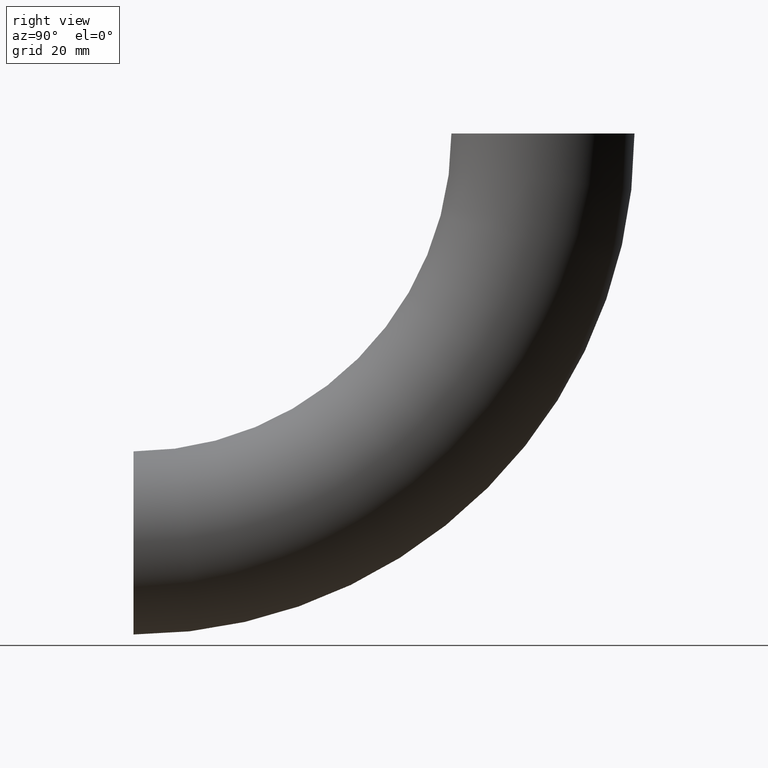
[diagram: clean part render]
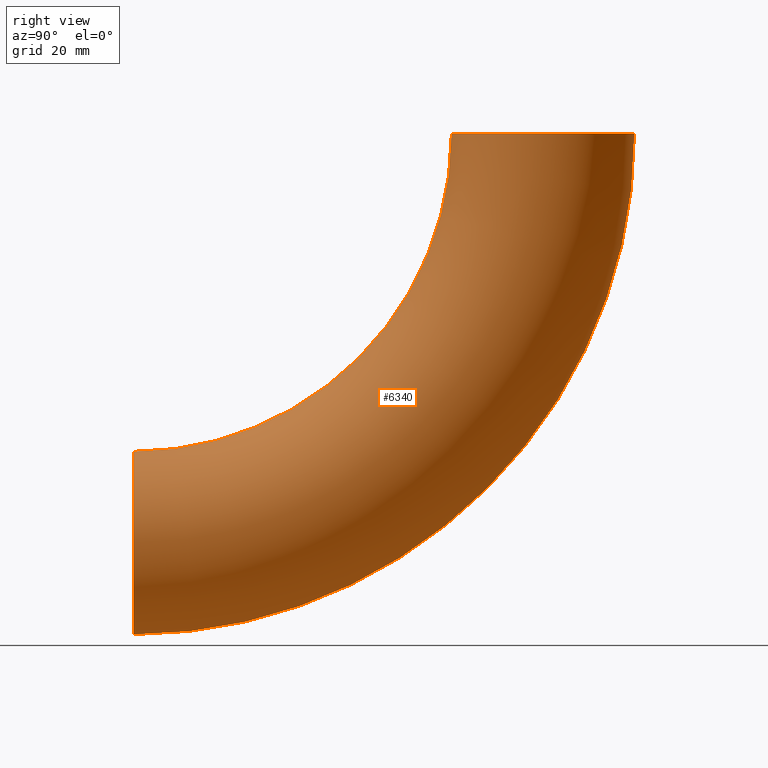
[diagram: same view with one face highlighted and labeled with its STEP entity id]
A machine part, right view. The second image highlights one B-rep face of the part: STEP entity #6340.
In plain terms, the highlighted toroidal blend (fillet) surface has major radius 108 mm and minor (blend) radius 24.15 mm.
Its self-contained STEP definition (entity closure, byte-faithful):
#87 = EDGE_CURVE ( 'NONE', #7741, #11550, #11129, .T. ) ;
#662 = AXIS2_PLACEMENT_3D ( 'NONE', #3085, #8453, #5803 ) ;
#792 = DIRECTION ( 'NONE',  ( -1.000000000000000000, -0.0000000000000000000, -0.0000000000000000000 ) ) ;
#1064 = CARTESIAN_POINT ( 'NONE',  ( 0.0000000000000000000, 0.0000000000000000000, 0.0000000000000000000 ) ) ;
#1629 = AXIS2_PLACEMENT_3D ( 'NONE', #7996, #4229, #7831 ) ;
#2225 = CARTESIAN_POINT ( 'NONE',  ( 0.0000000000000000000, 132.1499999999999800, -8.091853725366135600E-015 ) ) ;
#2626 = TOROIDAL_SURFACE ( 'NONE', #6694, 108.0000000000000000, 24.14999999999999900 ) ;
#2855 = CARTESIAN_POINT ( 'NONE',  ( 0.0000000000000000000, 0.0000000000000000000, -132.1499999999999800 ) ) ;
#3085 = CARTESIAN_POINT ( 'NONE',  ( 0.0000000000000000000, 108.0000000000000000, -6.613092715395707500E-015 ) ) ;
#3470 = CIRCLE ( 'NONE', #662, 24.14999999999999100 ) ;
#4229 = DIRECTION ( 'NONE',  ( 0.0000000000000000000, 1.000000000000000000, 0.0000000000000000000 ) ) ;
#4531 = ORIENTED_EDGE ( 'NONE', *, *, #87, .T. ) ;
#4922 = CARTESIAN_POINT ( 'NONE',  ( 2.957522019940857900E-015, 0.0000000000000000000, 0.0000000000000000000 ) ) ;
#5348 = EDGE_CURVE ( 'NONE', #6613, #10288, #3470, .T. ) ;
#5662 = DIRECTION ( 'NONE',  ( -1.000000000000000000, -0.0000000000000000000, -0.0000000000000000000 ) ) ;
#5749 = EDGE_CURVE ( 'NONE', #10288, #11550, #7249, .T. ) ;
#5803 = DIRECTION ( 'NONE',  ( 0.0000000000000000000, -1.000000000000000000, 6.123233995736768500E-017 ) ) ;
#6340 = ADVANCED_FACE ( 'NONE', ( #9942 ), #2626, .T. ) ;
#6396 = DIRECTION ( 'NONE',  ( 0.0000000000000000000, 0.0000000000000000000, 1.000000000000000000 ) ) ;
#6613 = VERTEX_POINT ( 'NONE', #9875 ) ;
#6694 = AXIS2_PLACEMENT_3D ( 'NONE', #10721, #792, #11688 ) ;
#7135 = AXIS2_PLACEMENT_3D ( 'NONE', #1064, #5662, #6396 ) ;
#7249 = CIRCLE ( 'NONE', #7135, 132.1499999999999800 ) ;
#7443 = EDGE_LOOP ( 'NONE', ( #10783, #8066, #11165, #4531 ) ) ;
#7741 = VERTEX_POINT ( 'NONE', #10231 ) ;
#7831 = DIRECTION ( 'NONE',  ( 0.0000000000000000000, 0.0000000000000000000, 1.000000000000000000 ) ) ;
#7921 = AXIS2_PLACEMENT_3D ( 'NONE', #4922, #9433, #11250 ) ;
#7996 = CARTESIAN_POINT ( 'NONE',  ( 0.0000000000000000000, 0.0000000000000000000, -108.0000000000000000 ) ) ;
#8066 = ORIENTED_EDGE ( 'NONE', *, *, #5348, .F. ) ;
#8385 = CIRCLE ( 'NONE', #7921, 83.85000000000000900 ) ;
#8453 = DIRECTION ( 'NONE',  ( 0.0000000000000000000, 6.123233995736766000E-017, 1.000000000000000000 ) ) ;
#9433 = DIRECTION ( 'NONE',  ( -1.000000000000000000, -0.0000000000000000000, -0.0000000000000000000 ) ) ;
#9875 = CARTESIAN_POINT ( 'NONE',  ( 0.0000000000000000000, 83.85000000000000900, -5.134331705425278500E-015 ) ) ;
#9942 = FACE_OUTER_BOUND ( 'NONE', #7443, .T. ) ;
#10231 = CARTESIAN_POINT ( 'NONE',  ( 0.0000000000000000000, 0.0000000000000000000, -83.85000000000000900 ) ) ;
#10288 = VERTEX_POINT ( 'NONE', #2225 ) ;
#10721 = CARTESIAN_POINT ( 'NONE',  ( 0.0000000000000000000, 0.0000000000000000000, 0.0000000000000000000 ) ) ;
#10783 = ORIENTED_EDGE ( 'NONE', *, *, #5749, .F. ) ;
#11129 = CIRCLE ( 'NONE', #1629, 24.14999999999999100 ) ;
#11165 = ORIENTED_EDGE ( 'NONE', *, *, #11593, .T. ) ;
#11250 = DIRECTION ( 'NONE',  ( 0.0000000000000000000, 0.0000000000000000000, 1.000000000000000000 ) ) ;
#11550 = VERTEX_POINT ( 'NONE', #2855 ) ;
#11593 = EDGE_CURVE ( 'NONE', #6613, #7741, #8385, .T. ) ;
#11688 = DIRECTION ( 'NONE',  ( 0.0000000000000000000, 0.0000000000000000000, 1.000000000000000000 ) ) ;